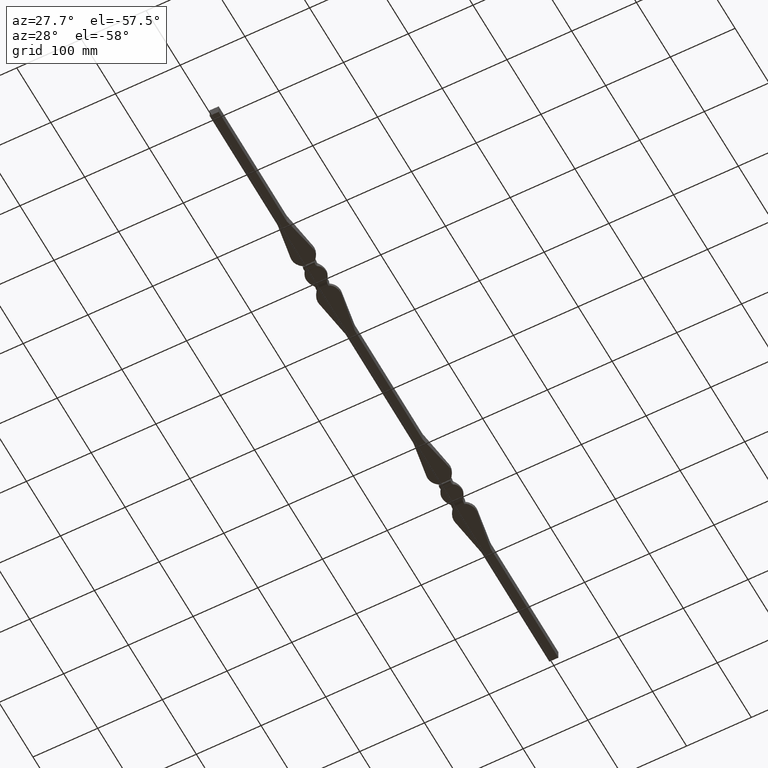
[diagram: clean part render]
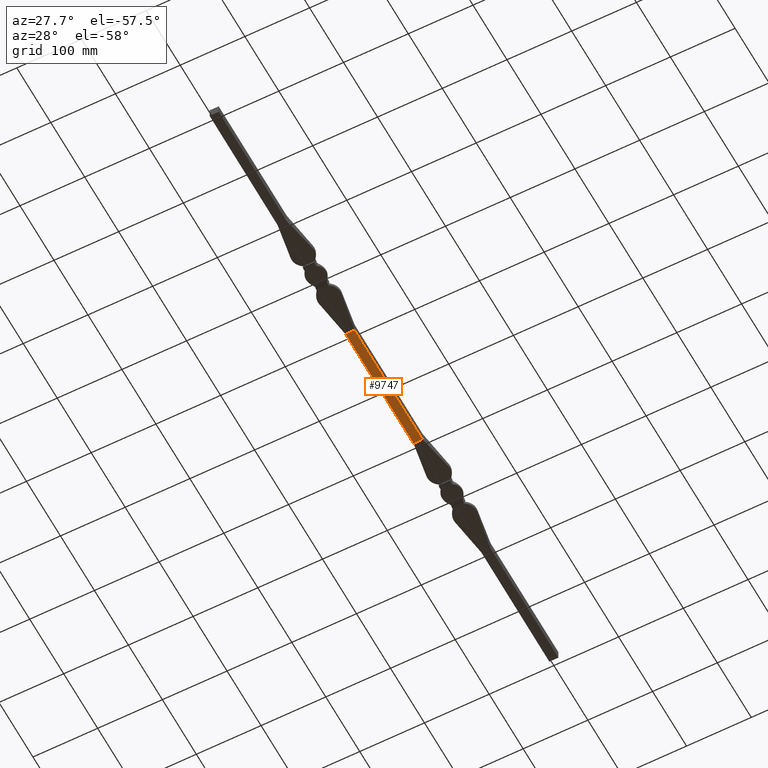
[diagram: same view with one face highlighted and labeled with its STEP entity id]
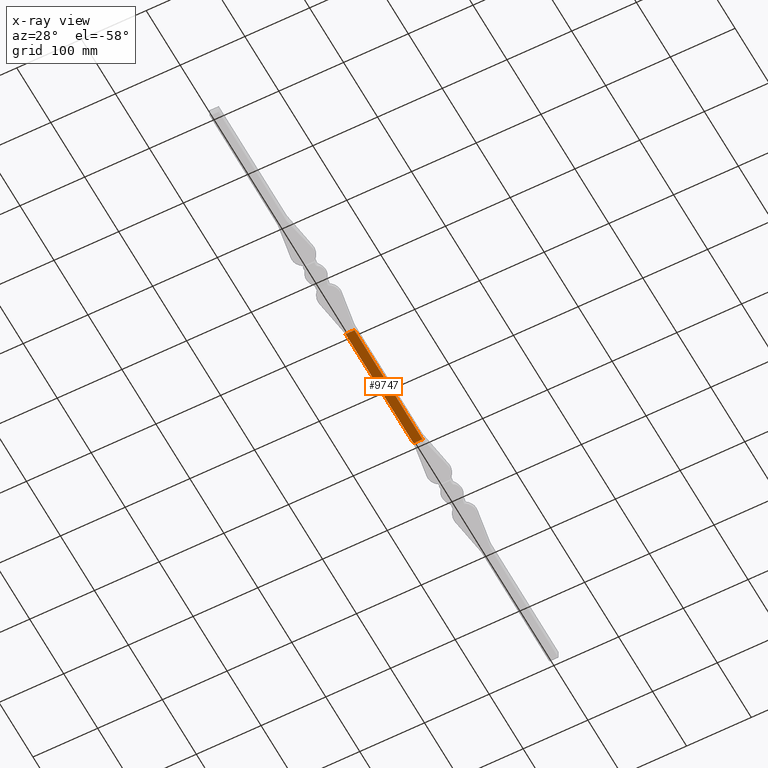
[diagram: x-ray of the same camera — body ghosted, the highlighted face saturated]
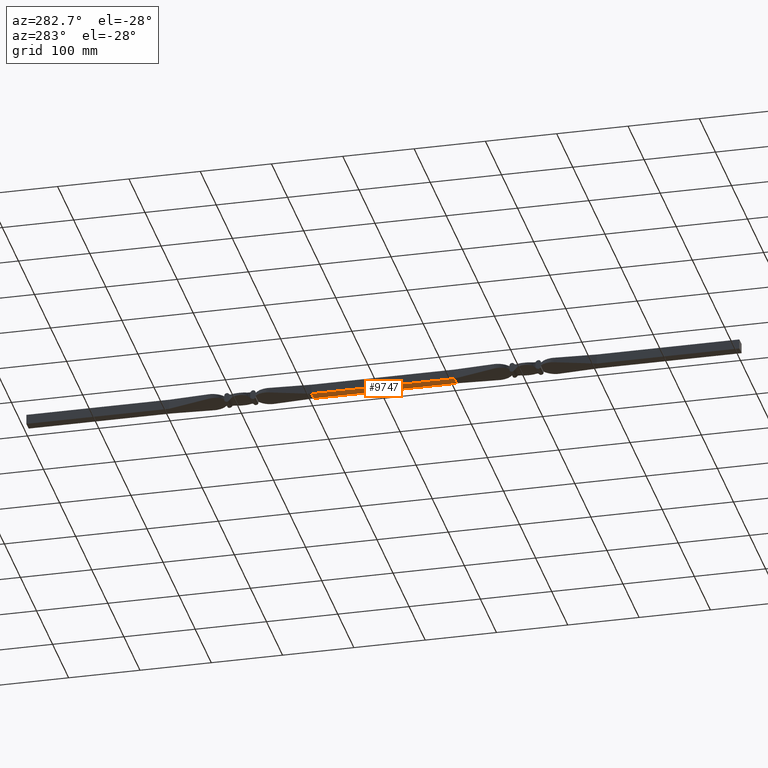
[diagram: same view with one face highlighted and labeled with its STEP entity id]
A machine part, auxiliary view. The second image highlights one B-rep face of the part: STEP entity #9747.
The next image is the same camera in x-ray: the body ghosted, the highlighted face saturated — about 0% of this face is hidden behind the body in this view.
A second angle (auxiliary view) of the same face is appended — the face is thin or edge-on in the first view.
In plain terms, the highlighted planar face has unit normal (0, 0, 1).
Its self-contained STEP definition (entity closure, byte-faithful):
#685 = VERTEX_POINT ( 'NONE', #10180 ) ;
#1287 = VERTEX_POINT ( 'NONE', #4583 ) ;
#1827 = CARTESIAN_POINT ( 'NONE',  ( 0.000000000000000000, -300.0000000000000568, -7.000000000000000000 ) ) ;
#2160 = LINE ( 'NONE', #9917, #7525 ) ;
#2505 = VERTEX_POINT ( 'NONE', #5038 ) ;
#3058 = ORIENTED_EDGE ( 'NONE', *, *, #8889, .T. ) ;
#3523 = VERTEX_POINT ( 'NONE', #10804 ) ;
#4048 = ORIENTED_EDGE ( 'NONE', *, *, #13867, .F. ) ;
#4378 = DIRECTION ( 'NONE',  ( -1.000000000000000000, 0.000000000000000000, 0.000000000000000000 ) ) ;
#4576 = LINE ( 'NONE', #1827, #6107 ) ;
#4583 = CARTESIAN_POINT ( 'NONE',  ( -7.000000000000000888, -300.0000000000000568, -7.000000000000000000 ) ) ;
#5038 = CARTESIAN_POINT ( 'NONE',  ( 7.000000000000000888, -300.0000000000000000, -7.000000000000000000 ) ) ;
#5233 = EDGE_LOOP ( 'NONE', ( #13402, #8983, #3058, #4048 ) ) ;
#5786 = DIRECTION ( 'NONE',  ( 4.625929269271485322E-15, 1.000000000000000000, -0.000000000000000000 ) ) ;
#5864 = VECTOR ( 'NONE', #4378, 1000.000000000000000 ) ;
#6107 = VECTOR ( 'NONE', #11384, 1000.000000000000000 ) ;
#6911 = EDGE_CURVE ( 'NONE', #2505, #3523, #6939, .T. ) ;
#6939 = LINE ( 'NONE', #8044, #9297 ) ;
#7525 = VECTOR ( 'NONE', #11937, 1000.000000000000000 ) ;
#8044 = CARTESIAN_POINT ( 'NONE',  ( 6.999999999998521183, -419.7989898732233769, -7.000000000000000000 ) ) ;
#8457 = PLANE ( 'NONE',  #11707 ) ;
#8657 = CARTESIAN_POINT ( 'NONE',  ( 0.000000000000000000, -100.0000000000000000, -7.000000000000000000 ) ) ;
#8889 = EDGE_CURVE ( 'NONE', #1287, #685, #2160, .T. ) ;
#8983 = ORIENTED_EDGE ( 'NONE', *, *, #12980, .T. ) ;
#9297 = VECTOR ( 'NONE', #5786, 1000.000000000000000 ) ;
#9594 = CARTESIAN_POINT ( 'NONE',  ( -7.000000000001480593, -419.7989898732233200, -7.000000000000000000 ) ) ;
#9747 = ADVANCED_FACE ( 'NONE', ( #12739 ), #8457, .F. ) ;
#9917 = CARTESIAN_POINT ( 'NONE',  ( -7.000000000001480593, -419.7989898732233200, -7.000000000000000000 ) ) ;
#10180 = CARTESIAN_POINT ( 'NONE',  ( -7.000000000000000888, -100.0000000000000000, -7.000000000000000000 ) ) ;
#10739 = LINE ( 'NONE', #8657, #5864 ) ;
#10804 = CARTESIAN_POINT ( 'NONE',  ( 7.000000000000000888, -100.0000000000000284, -7.000000000000000000 ) ) ;
#11384 = DIRECTION ( 'NONE',  ( -1.000000000000000000, 0.000000000000000000, 0.000000000000000000 ) ) ;
#11659 = DIRECTION ( 'NONE',  ( 0.000000000000000000, 0.000000000000000000, 1.000000000000000000 ) ) ;
#11707 = AXIS2_PLACEMENT_3D ( 'NONE', #9594, #11659, #12746 ) ;
#11937 = DIRECTION ( 'NONE',  ( 4.625929269271485322E-15, 1.000000000000000000, -0.000000000000000000 ) ) ;
#12739 = FACE_OUTER_BOUND ( 'NONE', #5233, .T. ) ;
#12746 = DIRECTION ( 'NONE',  ( 1.000000000000000000, 0.000000000000000000, -0.000000000000000000 ) ) ;
#12980 = EDGE_CURVE ( 'NONE', #2505, #1287, #4576, .T. ) ;
#13402 = ORIENTED_EDGE ( 'NONE', *, *, #6911, .F. ) ;
#13867 = EDGE_CURVE ( 'NONE', #3523, #685, #10739, .T. ) ;